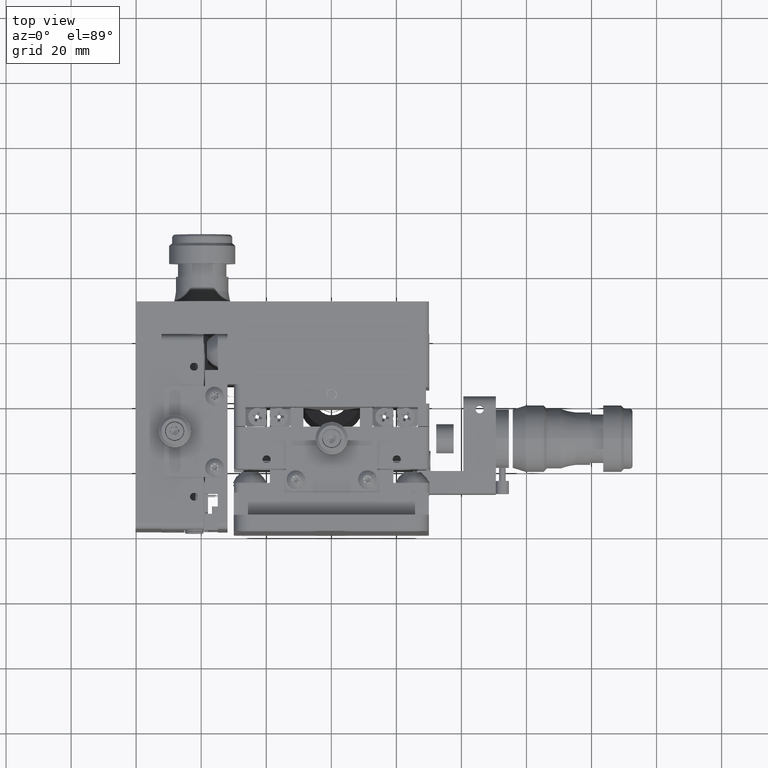
[diagram: clean part render]
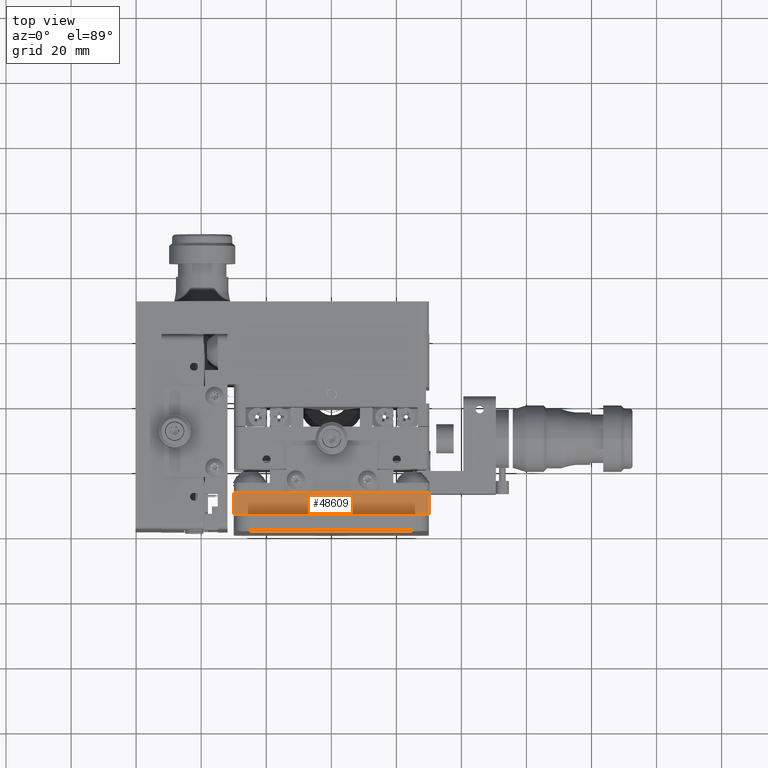
[diagram: same view with one face highlighted and labeled with its STEP entity id]
A machine part, top view. The second image highlights one B-rep face of the part: STEP entity #48609.
In plain terms, the highlighted planar face has unit normal (0, 0, -1).
Its self-contained STEP definition (entity closure, byte-faithful):
#2156 = VERTEX_POINT ( 'NONE', #30011 ) ;
#3333 = CARTESIAN_POINT ( 'NONE',  ( 30.00000000000002800, 12.00000000000001600, 31.50000000000003600 ) ) ;
#4156 = LINE ( 'NONE', #51919, #55740 ) ;
#4551 = PLANE ( 'NONE',  #9310 ) ;
#5475 = VECTOR ( 'NONE', #47561, 1000.000000000000000 ) ;
#9079 = DIRECTION ( 'NONE',  ( 3.976688766501868900E-016, 1.290122086207280000E-016, -1.000000000000000000 ) ) ;
#9199 = VECTOR ( 'NONE', #53169, 1000.000000000000000 ) ;
#9310 = AXIS2_PLACEMENT_3D ( 'NONE', #31584, #9079, #45218 ) ;
#11028 = DIRECTION ( 'NONE',  ( -1.000000000000000000, -3.447796851343854700E-016, -3.976688766501869300E-016 ) ) ;
#11782 = CARTESIAN_POINT ( 'NONE',  ( 30.00000000000003600, 5.000000000000009800, 31.50000000000005700 ) ) ;
#12246 = EDGE_CURVE ( 'NONE', #16874, #58125, #30120, .T. ) ;
#13398 = LINE ( 'NONE', #11782, #9199 ) ;
#15831 = EDGE_CURVE ( 'NONE', #36384, #16874, #13398, .T. ) ;
#15888 = CARTESIAN_POINT ( 'NONE',  ( 30.00000000000003600, 5.000000000000009800, 31.50000000000005700 ) ) ;
#16874 = VERTEX_POINT ( 'NONE', #3333 ) ;
#16909 = CARTESIAN_POINT ( 'NONE',  ( 30.00000000000004300, 12.00000000000001600, 31.50000000000004300 ) ) ;
#23852 = ORIENTED_EDGE ( 'NONE', *, *, #29434, .F. ) ;
#24872 = CARTESIAN_POINT ( 'NONE',  ( -30.00000000000003900, 12.00000000000000200, 31.50000000000002800 ) ) ;
#27345 = LINE ( 'NONE', #15888, #5475 ) ;
#29029 = CARTESIAN_POINT ( 'NONE',  ( 30.00000000000003600, 5.000000000000009800, 31.50000000000005700 ) ) ;
#29434 = EDGE_CURVE ( 'NONE', #36384, #2156, #27345, .T. ) ;
#30011 = CARTESIAN_POINT ( 'NONE',  ( -30.00000000000003900, 4.999999999999990200, 31.50000000000002800 ) ) ;
#30120 = LINE ( 'NONE', #16909, #46418 ) ;
#31584 = CARTESIAN_POINT ( 'NONE',  ( 30.00000000000003600, 5.000000000000009800, 31.50000000000005700 ) ) ;
#36384 = VERTEX_POINT ( 'NONE', #29029 ) ;
#36863 = ORIENTED_EDGE ( 'NONE', *, *, #12246, .T. ) ;
#42413 = ORIENTED_EDGE ( 'NONE', *, *, #15831, .T. ) ;
#45218 = DIRECTION ( 'NONE',  ( -1.000000000000000000, -3.447796851343854700E-016, -3.976688766501869300E-016 ) ) ;
#46418 = VECTOR ( 'NONE', #11028, 1000.000000000000000 ) ;
#47555 = FACE_OUTER_BOUND ( 'NONE', #52423, .T. ) ;
#47561 = DIRECTION ( 'NONE',  ( -1.000000000000000000, -3.447796851343854700E-016, -3.976688766501869300E-016 ) ) ;
#47821 = DIRECTION ( 'NONE',  ( 2.276337648298599800E-016, 1.000000000000000000, 1.182499646148825700E-016 ) ) ;
#48609 = ADVANCED_FACE ( 'NONE', ( #47555 ), #4551, .F. ) ;
#51919 = CARTESIAN_POINT ( 'NONE',  ( -30.00000000000003900, 4.999999999999990200, 31.50000000000002800 ) ) ;
#52423 = EDGE_LOOP ( 'NONE', ( #36863, #56575, #23852, #42413 ) ) ;
#53169 = DIRECTION ( 'NONE',  ( 2.276337648298599800E-016, 1.000000000000000000, 1.182499646148825700E-016 ) ) ;
#55740 = VECTOR ( 'NONE', #47821, 1000.000000000000000 ) ;
#56575 = ORIENTED_EDGE ( 'NONE', *, *, #57339, .F. ) ;
#57339 = EDGE_CURVE ( 'NONE', #2156, #58125, #4156, .T. ) ;
#58125 = VERTEX_POINT ( 'NONE', #24872 ) ;